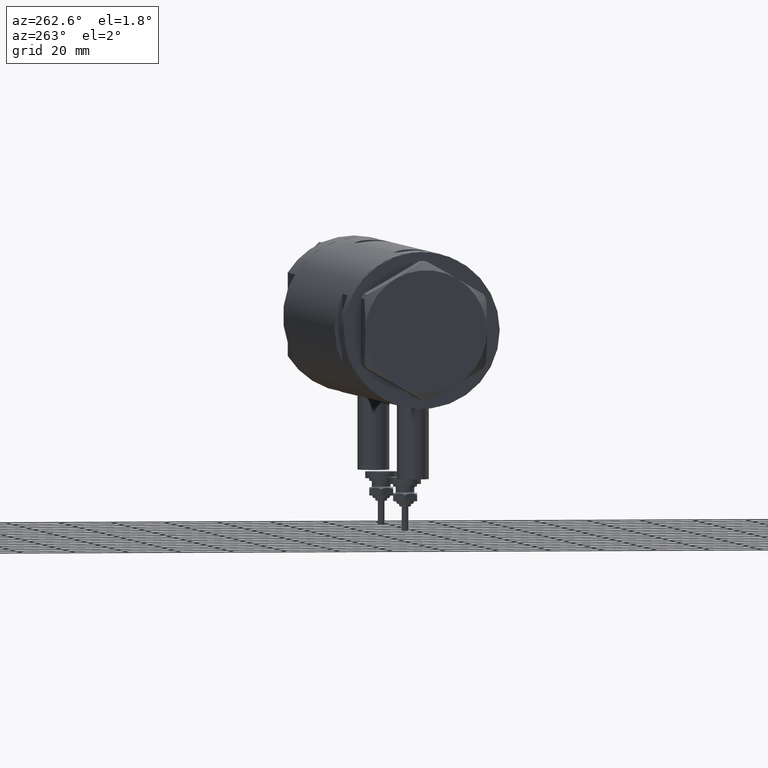
[diagram: clean part render]
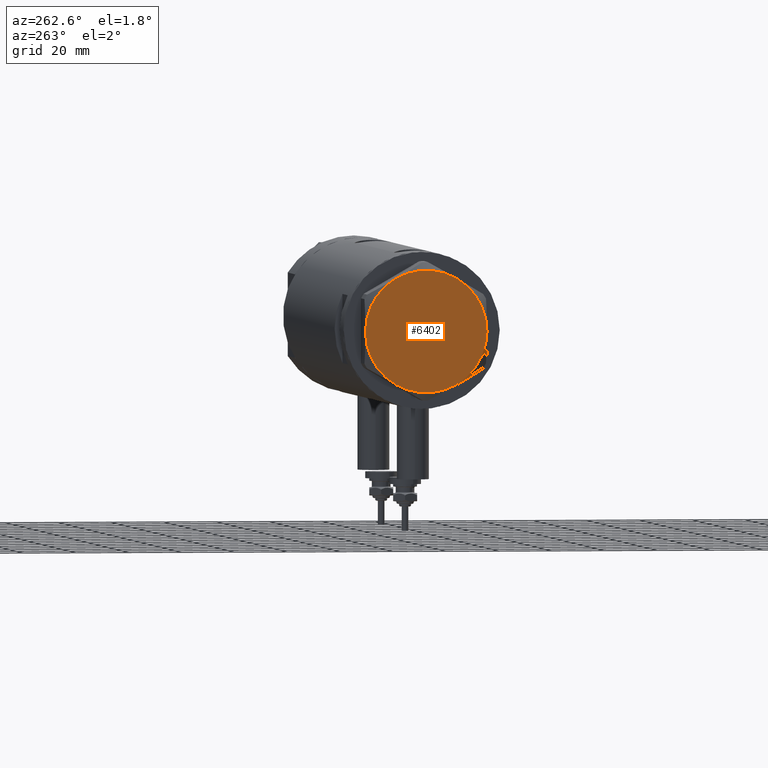
[diagram: same view with one face highlighted and labeled with its STEP entity id]
A machine part, auxiliary view. The second image highlights one B-rep face of the part: STEP entity #6402.
In plain terms, the highlighted planar face has unit normal (-1, -0, 0).
Its self-contained STEP definition (entity closure, byte-faithful):
#488 = CIRCLE ( 'NONE', #5862, 23.00000000000004619 ) ;
#1066 = VERTEX_POINT ( 'NONE', #1715 ) ;
#1075 = CARTESIAN_POINT ( 'NONE',  ( 11.49999999999990408, 19.91858428704219364, 13.00000000000000000 ) ) ;
#1426 = ORIENTED_EDGE ( 'NONE', *, *, #2958, .T. ) ;
#1436 = AXIS2_PLACEMENT_3D ( 'NONE', #2485, #3613, #1561 ) ;
#1561 = DIRECTION ( 'NONE',  ( 1.000000000000000000, 0.000000000000000000, 0.000000000000000000 ) ) ;
#1587 = VERTEX_POINT ( 'NONE', #5421 ) ;
#1639 = AXIS2_PLACEMENT_3D ( 'NONE', #1940, #1913, #4445 ) ;
#1715 = CARTESIAN_POINT ( 'NONE',  ( -11.50000000000004441, 19.91858428704211548, 13.00000000000000000 ) ) ;
#1770 = AXIS2_PLACEMENT_3D ( 'NONE', #1898, #3955, #6004 ) ;
#1823 = DIRECTION ( 'NONE',  ( 0.000000000000000000, 0.000000000000000000, 1.000000000000000000 ) ) ;
#1849 = AXIS2_PLACEMENT_3D ( 'NONE', #4397, #1823, #5938 ) ;
#1898 = CARTESIAN_POINT ( 'NONE',  ( 0.000000000000000000, 0.000000000000000000, 13.00000000000000000 ) ) ;
#1913 = DIRECTION ( 'NONE',  ( 0.000000000000000000, 0.000000000000000000, 1.000000000000000000 ) ) ;
#1940 = CARTESIAN_POINT ( 'NONE',  ( 0.000000000000000000, 0.000000000000000000, 13.00000000000000000 ) ) ;
#1994 = EDGE_CURVE ( 'NONE', #4531, #1066, #3805, .T. ) ;
#2050 = DIRECTION ( 'NONE',  ( 0.000000000000000000, 0.000000000000000000, 1.000000000000000000 ) ) ;
#2118 = ORIENTED_EDGE ( 'NONE', *, *, #3264, .T. ) ;
#2211 = ORIENTED_EDGE ( 'NONE', *, *, #1994, .T. ) ;
#2444 = EDGE_CURVE ( 'NONE', #4206, #3039, #6178, .T. ) ;
#2485 = CARTESIAN_POINT ( 'NONE',  ( 0.000000000000000000, 0.000000000000000000, 13.00000000000000000 ) ) ;
#2509 = ORIENTED_EDGE ( 'NONE', *, *, #2599, .T. ) ;
#2517 = AXIS2_PLACEMENT_3D ( 'NONE', #4359, #3771, #6408 ) ;
#2599 = EDGE_CURVE ( 'NONE', #1066, #1587, #5436, .T. ) ;
#2841 = FACE_OUTER_BOUND ( 'NONE', #6447, .T. ) ;
#2922 = CARTESIAN_POINT ( 'NONE',  ( 0.000000000000000000, 0.000000000000000000, 13.00000000000000000 ) ) ;
#2958 = EDGE_CURVE ( 'NONE', #1587, #3595, #488, .T. ) ;
#3039 = VERTEX_POINT ( 'NONE', #5924 ) ;
#3106 = ORIENTED_EDGE ( 'NONE', *, *, #5426, .T. ) ;
#3264 = EDGE_CURVE ( 'NONE', #3039, #4531, #6292, .T. ) ;
#3595 = VERTEX_POINT ( 'NONE', #4129 ) ;
#3613 = DIRECTION ( 'NONE',  ( 0.000000000000000000, 0.000000000000000000, 1.000000000000000000 ) ) ;
#3662 = DIRECTION ( 'NONE',  ( 1.000000000000000000, 0.000000000000000000, 0.000000000000000000 ) ) ;
#3771 = DIRECTION ( 'NONE',  ( 0.000000000000000000, 0.000000000000000000, 1.000000000000000000 ) ) ;
#3805 = CIRCLE ( 'NONE', #1436, 23.00000000000004619 ) ;
#3955 = DIRECTION ( 'NONE',  ( 0.000000000000000000, 0.000000000000000000, 1.000000000000000000 ) ) ;
#4129 = CARTESIAN_POINT ( 'NONE',  ( -11.49999999999990585, -19.91858428704219364, 13.00000000000000000 ) ) ;
#4206 = VERTEX_POINT ( 'NONE', #5830 ) ;
#4359 = CARTESIAN_POINT ( 'NONE',  ( 0.000000000000000000, 0.000000000000000000, 13.00000000000000000 ) ) ;
#4397 = CARTESIAN_POINT ( 'NONE',  ( 0.000000000000000000, 0.000000000000000000, 13.00000000000000000 ) ) ;
#4445 = DIRECTION ( 'NONE',  ( 1.000000000000000000, 0.000000000000000000, 0.000000000000000000 ) ) ;
#4531 = VERTEX_POINT ( 'NONE', #1075 ) ;
#4552 = CIRCLE ( 'NONE', #1639, 23.00000000000004619 ) ;
#4621 = CARTESIAN_POINT ( 'NONE',  ( 0.000000000000000000, 0.000000000000000000, 13.00000000000000000 ) ) ;
#4910 = PLANE ( 'NONE',  #1849 ) ;
#4986 = DIRECTION ( 'NONE',  ( 1.000000000000000000, 0.000000000000000000, 0.000000000000000000 ) ) ;
#5050 = DIRECTION ( 'NONE',  ( 0.000000000000000000, 0.000000000000000000, 1.000000000000000000 ) ) ;
#5312 = ORIENTED_EDGE ( 'NONE', *, *, #2444, .T. ) ;
#5421 = CARTESIAN_POINT ( 'NONE',  ( -23.00000000000004619, -8.112498833180673323E-14, 13.00000000000000000 ) ) ;
#5426 = EDGE_CURVE ( 'NONE', #3595, #4206, #4552, .T. ) ;
#5436 = CIRCLE ( 'NONE', #6394, 23.00000000000004619 ) ;
#5830 = CARTESIAN_POINT ( 'NONE',  ( 11.50000000000018296, -19.91858428704203732, 13.00000000000000000 ) ) ;
#5862 = AXIS2_PLACEMENT_3D ( 'NONE', #2922, #5050, #4986 ) ;
#5924 = CARTESIAN_POINT ( 'NONE',  ( 22.99999999999995026, 2.373657066004705010E-13, 13.00000000000000000 ) ) ;
#5938 = DIRECTION ( 'NONE',  ( 1.000000000000000000, 0.000000000000000000, -0.000000000000000000 ) ) ;
#6004 = DIRECTION ( 'NONE',  ( 1.000000000000000000, 0.000000000000000000, 0.000000000000000000 ) ) ;
#6178 = CIRCLE ( 'NONE', #2517, 23.00000000000004619 ) ;
#6292 = CIRCLE ( 'NONE', #1770, 23.00000000000004619 ) ;
#6394 = AXIS2_PLACEMENT_3D ( 'NONE', #4621, #2050, #3662 ) ;
#6402 = ADVANCED_FACE ( 'NONE', ( #2841 ), #4910, .T. ) ;
#6408 = DIRECTION ( 'NONE',  ( 1.000000000000000000, 0.000000000000000000, 0.000000000000000000 ) ) ;
#6447 = EDGE_LOOP ( 'NONE', ( #5312, #2118, #2211, #2509, #1426, #3106 ) ) ;